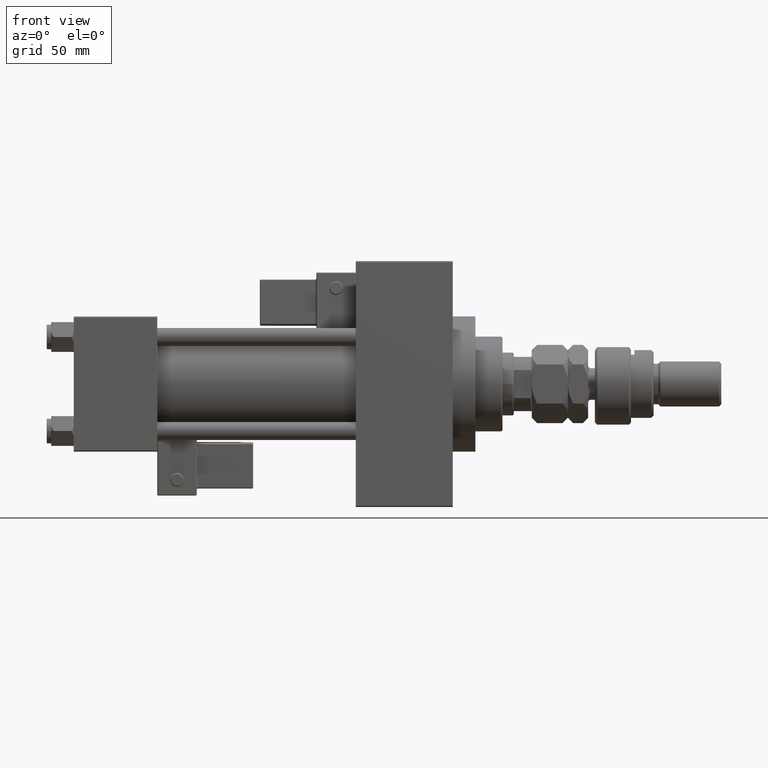
[diagram: clean part render]
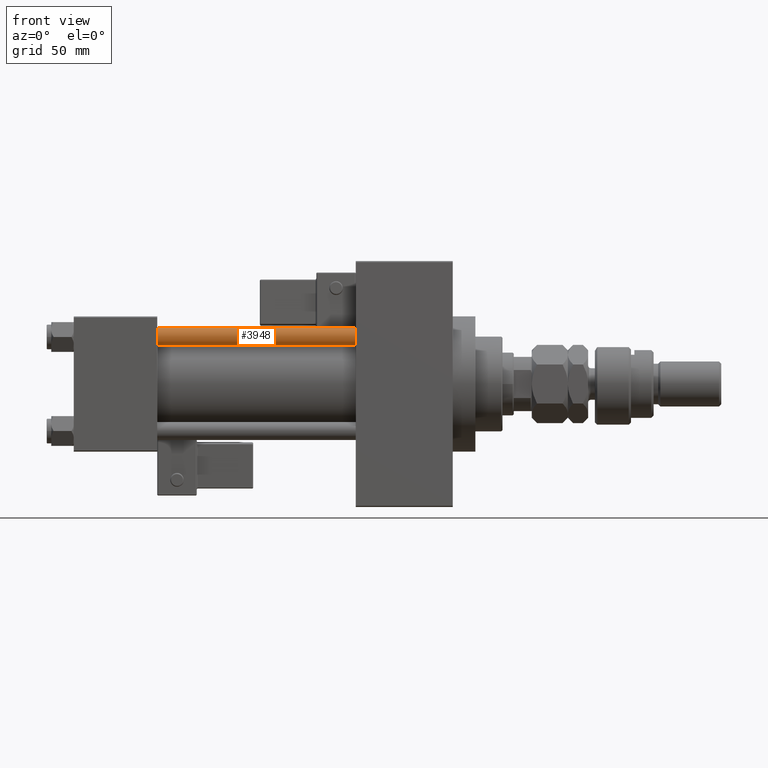
[diagram: same view with one face highlighted and labeled with its STEP entity id]
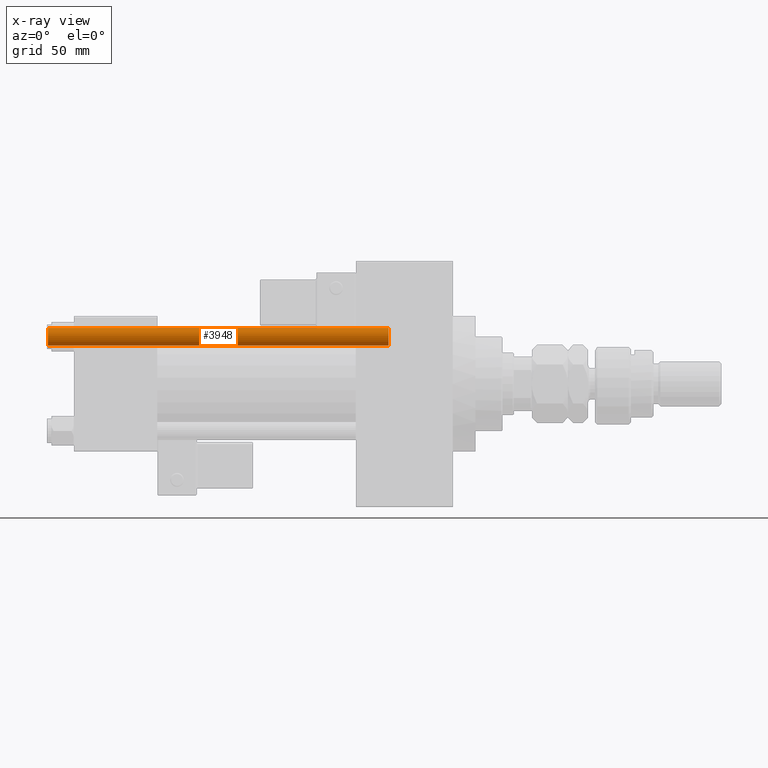
[diagram: x-ray of the same camera — body ghosted, the highlighted face saturated]
A machine part, front view. The second image highlights one B-rep face of the part: STEP entity #3948.
The next image is the same camera in x-ray: the body ghosted, the highlighted face saturated — about 0% of this face is hidden behind the body in this view.
In plain terms, the highlighted cylindrical surface (edge-blend (fillet) strip) has radius 4 mm, axis along (1, 0, 0).
Its self-contained STEP definition (entity closure, byte-faithful):
#456 = DIRECTION ( 'NONE',  ( 1.000000000000000000, 0.000000000000000000, 0.000000000000000000 ) ) ;
#1689 = CIRCLE ( 'NONE', #31397, 4.000000000000000000 ) ;
#3385 = VECTOR ( 'NONE', #6655, 1000.000000000000000 ) ;
#3948 = ADVANCED_FACE ( 'NONE', ( #28119 ), #40076, .T. ) ;
#5650 = CIRCLE ( 'NONE', #52357, 4.000000000000000000 ) ;
#6655 = DIRECTION ( 'NONE',  ( -0.000000000000000000, -0.000000000000000000, -1.000000000000000000 ) ) ;
#10008 = CARTESIAN_POINT ( 'NONE',  ( -4.000000000000000000, 0.000000000000000000, 151.5000000000000284 ) ) ;
#10137 = LINE ( 'NONE', #51310, #3385 ) ;
#12688 = CARTESIAN_POINT ( 'NONE',  ( 0.000000000000000000, 0.000000000000000000, 152.0000000000000000 ) ) ;
#14583 = AXIS2_PLACEMENT_3D ( 'NONE', #12688, #23605, #16435 ) ;
#15006 = ORIENTED_EDGE ( 'NONE', *, *, #22208, .F. ) ;
#15120 = DIRECTION ( 'NONE',  ( 0.000000000000000000, 0.000000000000000000, -1.000000000000000000 ) ) ;
#16435 = DIRECTION ( 'NONE',  ( -1.000000000000000000, 0.000000000000000000, 0.000000000000000000 ) ) ;
#17287 = EDGE_LOOP ( 'NONE', ( #51279, #40943, #46720, #15006 ) ) ;
#22208 = EDGE_CURVE ( 'NONE', #34599, #51990, #10137, .T. ) ;
#22523 = VERTEX_POINT ( 'NONE', #30666 ) ;
#23605 = DIRECTION ( 'NONE',  ( -0.000000000000000000, -0.000000000000000000, -1.000000000000000000 ) ) ;
#26732 = VERTEX_POINT ( 'NONE', #37522 ) ;
#28119 = FACE_OUTER_BOUND ( 'NONE', #17287, .T. ) ;
#30666 = CARTESIAN_POINT ( 'NONE',  ( 4.000000000000000000, 4.898587196589412829E-16, 151.5000000000000284 ) ) ;
#30915 = DIRECTION ( 'NONE',  ( -0.000000000000000000, -0.000000000000000000, -1.000000000000000000 ) ) ;
#31397 = AXIS2_PLACEMENT_3D ( 'NONE', #45372, #33923, #456 ) ;
#33923 = DIRECTION ( 'NONE',  ( -0.000000000000000000, -0.000000000000000000, 1.000000000000000000 ) ) ;
#34599 = VERTEX_POINT ( 'NONE', #10008 ) ;
#35320 = DIRECTION ( 'NONE',  ( 1.000000000000000000, 0.000000000000000000, 0.000000000000000000 ) ) ;
#35571 = CARTESIAN_POINT ( 'NONE',  ( 0.000000000000000000, 0.000000000000000000, 151.5000000000000284 ) ) ;
#37522 = CARTESIAN_POINT ( 'NONE',  ( 4.000000000000000000, 4.898587196589412829E-16, 0.5000000000000281997 ) ) ;
#39141 = CARTESIAN_POINT ( 'NONE',  ( 4.000000000000000000, 4.898587196589412829E-16, 152.0000000000000000 ) ) ;
#39451 = EDGE_CURVE ( 'NONE', #34599, #22523, #5650, .T. ) ;
#40076 = CYLINDRICAL_SURFACE ( 'NONE', #14583, 4.000000000000000000 ) ;
#40943 = ORIENTED_EDGE ( 'NONE', *, *, #40947, .T. ) ;
#40947 = EDGE_CURVE ( 'NONE', #22523, #26732, #52425, .T. ) ;
#45372 = CARTESIAN_POINT ( 'NONE',  ( 0.000000000000000000, 0.000000000000000000, 0.5000000000000281997 ) ) ;
#46720 = ORIENTED_EDGE ( 'NONE', *, *, #47651, .T. ) ;
#47651 = EDGE_CURVE ( 'NONE', #26732, #51990, #1689, .T. ) ;
#48691 = CARTESIAN_POINT ( 'NONE',  ( -4.000000000000000000, 0.000000000000000000, 0.5000000000000281997 ) ) ;
#49124 = VECTOR ( 'NONE', #30915, 1000.000000000000000 ) ;
#51279 = ORIENTED_EDGE ( 'NONE', *, *, #39451, .T. ) ;
#51310 = CARTESIAN_POINT ( 'NONE',  ( -4.000000000000000000, 0.000000000000000000, 152.0000000000000000 ) ) ;
#51990 = VERTEX_POINT ( 'NONE', #48691 ) ;
#52357 = AXIS2_PLACEMENT_3D ( 'NONE', #35571, #15120, #35320 ) ;
#52425 = LINE ( 'NONE', #39141, #49124 ) ;